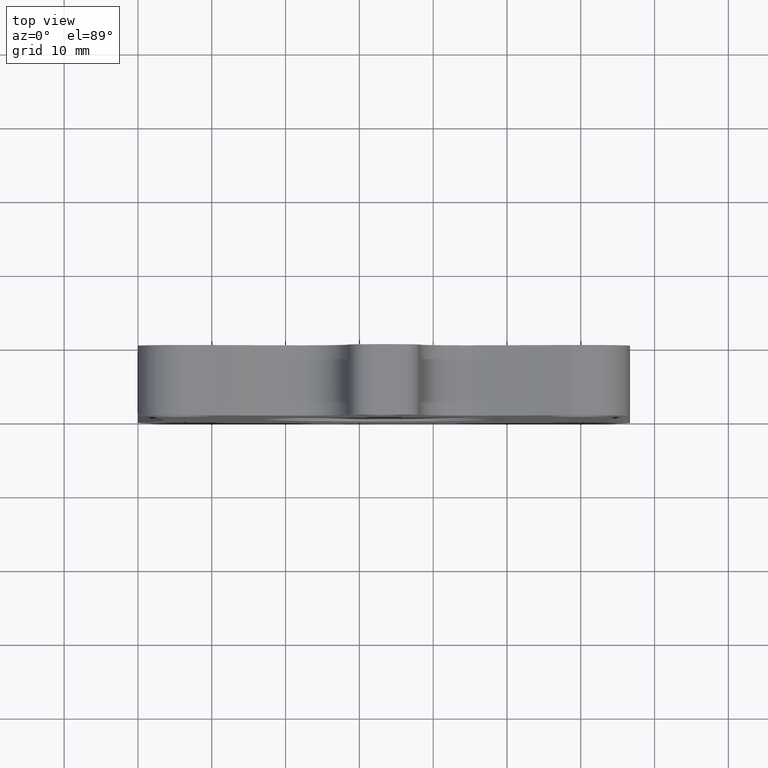
[diagram: clean part render]
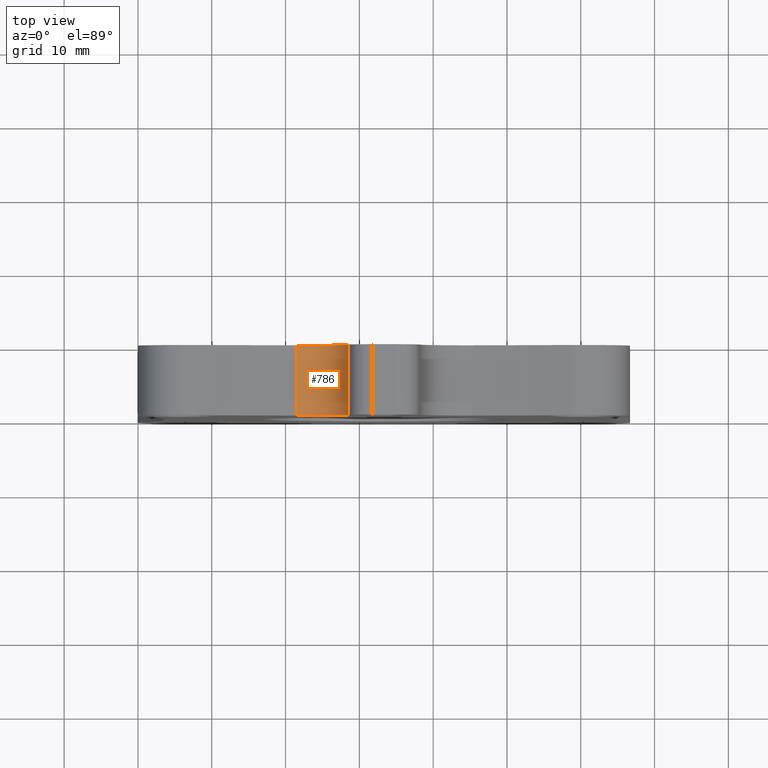
[diagram: same view with one face highlighted and labeled with its STEP entity id]
A machine part, top view. The second image highlights one B-rep face of the part: STEP entity #786.
In plain terms, the highlighted cylindrical surface (partial cylindrical patch) has radius 6.35 mm, axis along (-0, 1, -0).
Its self-contained STEP definition (entity closure, byte-faithful):
#55 = CIRCLE ( 'NONE', #333, 0.2500000000000000000 ) ;
#63 = EDGE_CURVE ( 'NONE', #89, #1196, #430, .T. ) ;
#84 = DIRECTION ( 'NONE',  ( -0.0000000000000000000, 1.000000000000000000, -0.0000000000000000000 ) ) ;
#89 = VERTEX_POINT ( 'NONE', #528 ) ;
#160 = CARTESIAN_POINT ( 'NONE',  ( 0.8750000000000001100, 0.3750000000000000600, 0.1360113368150626900 ) ) ;
#197 = EDGE_CURVE ( 'NONE', #833, #823, #1491, .T. ) ;
#210 = DIRECTION ( 'NONE',  ( -0.0000000000000000000, 1.000000000000000000, -0.0000000000000000000 ) ) ;
#211 = DIRECTION ( 'NONE',  ( 0.0000000000000000000, 0.0000000000000000000, 1.000000000000000000 ) ) ;
#251 = CARTESIAN_POINT ( 'NONE',  ( 0.8444341042662069100, 0.0000000000000000000, -0.1121130795933015200 ) ) ;
#278 = DIRECTION ( 'NONE',  ( 0.0000000000000000000, 0.0000000000000000000, -1.000000000000000000 ) ) ;
#281 = VECTOR ( 'NONE', #777, 39.37007874015748100 ) ;
#333 = AXIS2_PLACEMENT_3D ( 'NONE', #160, #994, #278 ) ;
#430 = LINE ( 'NONE', #251, #465 ) ;
#436 = ORIENTED_EDGE ( 'NONE', *, *, #1132, .F. ) ;
#445 = AXIS2_PLACEMENT_3D ( 'NONE', #928, #210, #1042 ) ;
#456 = CYLINDRICAL_SURFACE ( 'NONE', #957, 0.2500000000000000000 ) ;
#465 = VECTOR ( 'NONE', #1162, 39.37007874015748100 ) ;
#528 = CARTESIAN_POINT ( 'NONE',  ( 0.8444341042662069100, 0.0000000000000000000, -0.1121130795933015200 ) ) ;
#608 = ORIENTED_EDGE ( 'NONE', *, *, #63, .F. ) ;
#653 = CARTESIAN_POINT ( 'NONE',  ( 0.8444341042662069100, 0.3750000000000000600, -0.1121130795933015200 ) ) ;
#762 = CARTESIAN_POINT ( 'NONE',  ( 1.124508153544055500, 0.0000000000000000000, 0.1203371122716876300 ) ) ;
#777 = DIRECTION ( 'NONE',  ( -0.0000000000000000000, 1.000000000000000000, -0.0000000000000000000 ) ) ;
#786 = ADVANCED_FACE ( 'NONE', ( #1396 ), #456, .F. ) ;
#823 = VERTEX_POINT ( 'NONE', #1497 ) ;
#833 = VERTEX_POINT ( 'NONE', #762 ) ;
#928 = CARTESIAN_POINT ( 'NONE',  ( 0.8750000000000001100, 0.0000000000000000000, 0.1360113368150626900 ) ) ;
#935 = EDGE_CURVE ( 'NONE', #833, #89, #1481, .T. ) ;
#945 = ORIENTED_EDGE ( 'NONE', *, *, #935, .F. ) ;
#957 = AXIS2_PLACEMENT_3D ( 'NONE', #1264, #84, #211 ) ;
#961 = EDGE_LOOP ( 'NONE', ( #945, #969, #436, #608 ) ) ;
#969 = ORIENTED_EDGE ( 'NONE', *, *, #197, .T. ) ;
#994 = DIRECTION ( 'NONE',  ( 0.0000000000000000000, -1.000000000000000000, 0.0000000000000000000 ) ) ;
#1042 = DIRECTION ( 'NONE',  ( 0.0000000000000000000, 0.0000000000000000000, -1.000000000000000000 ) ) ;
#1132 = EDGE_CURVE ( 'NONE', #1196, #823, #55, .T. ) ;
#1162 = DIRECTION ( 'NONE',  ( -0.0000000000000000000, 1.000000000000000000, -0.0000000000000000000 ) ) ;
#1184 = CARTESIAN_POINT ( 'NONE',  ( 1.124508153544055300, 0.0000000000000000000, 0.1203371122716876300 ) ) ;
#1196 = VERTEX_POINT ( 'NONE', #653 ) ;
#1264 = CARTESIAN_POINT ( 'NONE',  ( 0.8750000000000001100, 0.0000000000000000000, 0.1360113368150626900 ) ) ;
#1396 = FACE_OUTER_BOUND ( 'NONE', #961, .T. ) ;
#1481 = CIRCLE ( 'NONE', #445, 0.2500000000000000000 ) ;
#1491 = LINE ( 'NONE', #1184, #281 ) ;
#1497 = CARTESIAN_POINT ( 'NONE',  ( 1.124508153544055500, 0.3750000000000000600, 0.1203371122716876300 ) ) ;